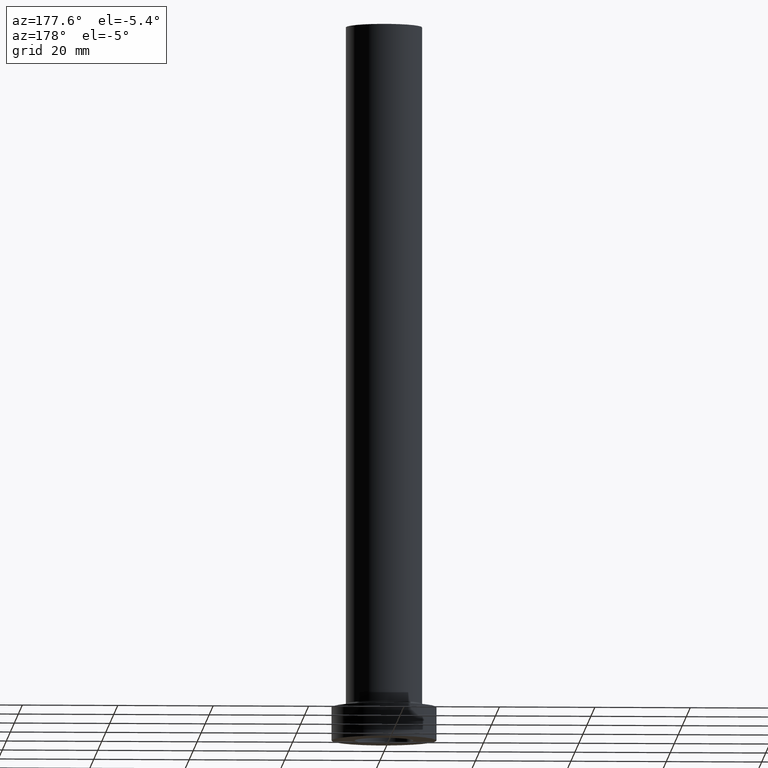
[diagram: clean part render]
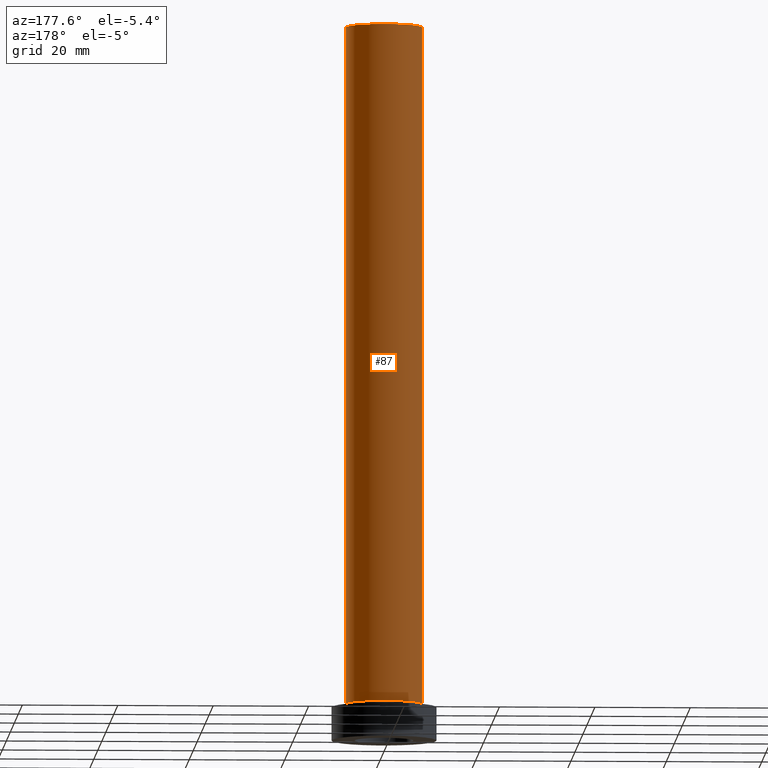
[diagram: same view with one face highlighted and labeled with its STEP entity id]
A machine part, auxiliary view. The second image highlights one B-rep face of the part: STEP entity #87.
In plain terms, the highlighted cylindrical surface (partial cylindrical patch) has radius 8 mm, axis along (-0, -0, -1).
Its self-contained STEP definition (entity closure, byte-faithful):
#10 = ORIENTED_EDGE ( 'NONE', *, *, #434, .T. ) ;
#18 = AXIS2_PLACEMENT_3D ( 'NONE', #130, #425, #281 ) ;
#26 = ORIENTED_EDGE ( 'NONE', *, *, #95, .T. ) ;
#28 = DIRECTION ( 'NONE',  ( 0.000000000000000000, 0.000000000000000000, 1.000000000000000000 ) ) ;
#37 = DIRECTION ( 'NONE',  ( 0.000000000000000000, 0.000000000000000000, 1.000000000000000000 ) ) ;
#40 = VERTEX_POINT ( 'NONE', #72 ) ;
#51 = AXIS2_PLACEMENT_3D ( 'NONE', #241, #28, #309 ) ;
#63 = CARTESIAN_POINT ( 'NONE',  ( 8.000000000000000000, 9.797174393178825657E-16, 7.700000000000012612 ) ) ;
#64 = VERTEX_POINT ( 'NONE', #148 ) ;
#70 = AXIS2_PLACEMENT_3D ( 'NONE', #433, #37, #402 ) ;
#72 = CARTESIAN_POINT ( 'NONE',  ( 8.000000000000000000, 9.797174393178825657E-16, 150.0000000000000000 ) ) ;
#77 = LINE ( 'NONE', #449, #460 ) ;
#82 = EDGE_CURVE ( 'NONE', #64, #102, #315, .T. ) ;
#87 = ADVANCED_FACE ( 'NONE', ( #344 ), #137, .T. ) ;
#89 = VERTEX_POINT ( 'NONE', #63 ) ;
#94 = CIRCLE ( 'NONE', #51, 8.000000000000000000 ) ;
#95 = EDGE_CURVE ( 'NONE', #89, #102, #94, .T. ) ;
#102 = VERTEX_POINT ( 'NONE', #457 ) ;
#130 = CARTESIAN_POINT ( 'NONE',  ( 0.000000000000000000, 0.000000000000000000, 150.0000000000000000 ) ) ;
#137 = CYLINDRICAL_SURFACE ( 'NONE', #18, 8.000000000000000000 ) ;
#148 = CARTESIAN_POINT ( 'NONE',  ( -8.000000000000000000, 0.000000000000000000, 150.0000000000000000 ) ) ;
#198 = EDGE_CURVE ( 'NONE', #40, #64, #398, .T. ) ;
#199 = DIRECTION ( 'NONE',  ( -0.000000000000000000, -0.000000000000000000, -1.000000000000000000 ) ) ;
#241 = CARTESIAN_POINT ( 'NONE',  ( 0.000000000000000000, 0.000000000000000000, 7.700000000000012612 ) ) ;
#257 = ORIENTED_EDGE ( 'NONE', *, *, #82, .F. ) ;
#279 = CARTESIAN_POINT ( 'NONE',  ( -8.000000000000000000, 0.000000000000000000, 150.0000000000000000 ) ) ;
#281 = DIRECTION ( 'NONE',  ( -1.000000000000000000, 0.000000000000000000, 0.000000000000000000 ) ) ;
#297 = EDGE_LOOP ( 'NONE', ( #362, #10, #26, #257 ) ) ;
#309 = DIRECTION ( 'NONE',  ( 1.000000000000000000, 0.000000000000000000, 0.000000000000000000 ) ) ;
#315 = LINE ( 'NONE', #279, #418 ) ;
#332 = DIRECTION ( 'NONE',  ( -0.000000000000000000, -0.000000000000000000, -1.000000000000000000 ) ) ;
#344 = FACE_OUTER_BOUND ( 'NONE', #297, .T. ) ;
#362 = ORIENTED_EDGE ( 'NONE', *, *, #198, .F. ) ;
#398 = CIRCLE ( 'NONE', #70, 8.000000000000000000 ) ;
#402 = DIRECTION ( 'NONE',  ( 1.000000000000000000, 0.000000000000000000, 0.000000000000000000 ) ) ;
#418 = VECTOR ( 'NONE', #199, 1000.000000000000000 ) ;
#425 = DIRECTION ( 'NONE',  ( -0.000000000000000000, -0.000000000000000000, -1.000000000000000000 ) ) ;
#433 = CARTESIAN_POINT ( 'NONE',  ( 0.000000000000000000, 0.000000000000000000, 150.0000000000000000 ) ) ;
#434 = EDGE_CURVE ( 'NONE', #40, #89, #77, .T. ) ;
#449 = CARTESIAN_POINT ( 'NONE',  ( 8.000000000000000000, 9.797174393178825657E-16, 150.0000000000000000 ) ) ;
#457 = CARTESIAN_POINT ( 'NONE',  ( -8.000000000000000000, 0.000000000000000000, 7.700000000000012612 ) ) ;
#460 = VECTOR ( 'NONE', #332, 1000.000000000000000 ) ;